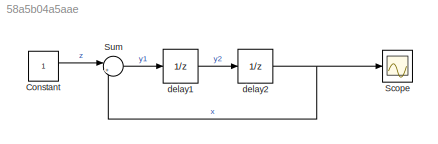
MODEL slx_58a5b04a5aae
KIND model
CONFIG AbsTol = auto
CONFIG EnableMultiTasking = off
CONFIG FixedStep = auto
CONFIG MaxStep = auto
CONFIG MinStep = auto
CONFIG RelTol = 1e-3
CONFIG SampleTimeConstraint = Unconstrained
CONFIG Solver = VariableStepAuto
CONFIG SolverName = VariableStepAuto
CONFIG StartTime = 0.0
CONFIG StopTime = 10.0
BLOCK [Constant] Constant
BLOCK [Scope] Scope
  Floating = off
  NameLocation = left
  NumInputPorts = 1
  Ports = [1]
  ScopeSpecificationString = Simulink.scopes.TimeScopeBlockCfg('CurrentConfiguration', extmgr.ConfigurationSet(extmgr.Configuration('Core','General UI',true),extmgr.Configuration('Core','Source UI',true),extmgr.Configuration('Sources','WiredSimulink',true),extmgr.Configuration('Visuals','Time Domain',true,'SerializedDisplays',{struct('MinYLimReal','-3.125','MaxYLimReal','28.125','YLabelReal','','MinYLimMag','0.00000','MaxYLim...<+1322ch>
BLOCK [Sum] Sum
  Inputs = |++
  Ports = [2, 1]
BLOCK [UnitDelay] delay1
  HasFrameUpgradeWarning = on
BLOCK [UnitDelay] delay2
  HasFrameUpgradeWarning = on
LINE Constant:1 -> Sum:1
LINE Sum:1 -> delay1:1
LINE delay1:1 -> delay2:1
NET delay2:1 -> Scope:1, Sum:2
note: NET lines group one-source signal fan-out (src -> all destinations, sorted); 1:1 wires keep LINE
